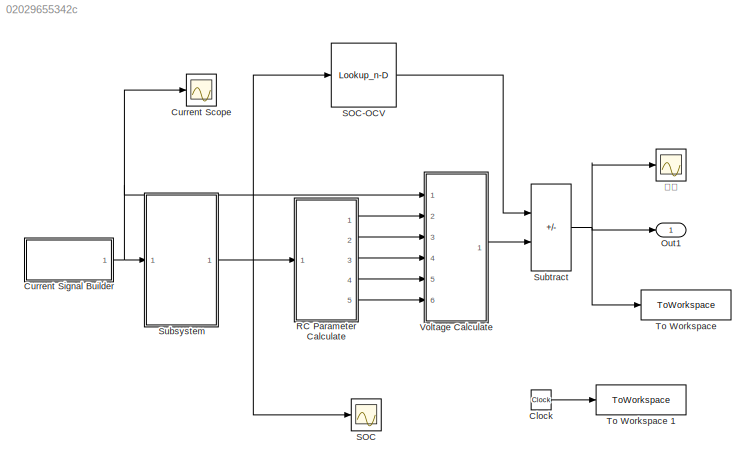
MODEL slx_02029655342c
KIND model
CONFIG AbsTol = auto
CONFIG FixedStep = auto
CONFIG MaxStep = auto
CONFIG MinStep = auto
CONFIG RelTol = 1e-3
CONFIG SampleTimeConstraint = Unconstrained
CONFIG Solver = VariableStepAuto
CONFIG SolverMode = SingleTasking
CONFIG SolverName = VariableStepAuto
CONFIG StartTime = 0.0
CONFIG StopTime = 50
BLOCK [Clock] Clock 
  Decimation = 50
BLOCK [Scope] Current Scope
  Floating = off
  NumInputPorts = 1
  Ports = [1]
  ScopeSpecificationString = Simulink.scopes.TimeScopeBlockCfg('CurrentConfiguration', extmgr.ConfigurationSet(extmgr.Configuration('Core','General UI',true,'DisplayFullSourceName',true),extmgr.Configuration('Core','Source UI',true),extmgr.Configuration('Sources','WiredSimulink',true),extmgr.Configuration('Visuals','Time Domain',true,'SerializedDisplays',{struct('MinYLimReal','-0.16875','MaxYLimReal','1.51875','YLabelReal',''...<+1450ch>
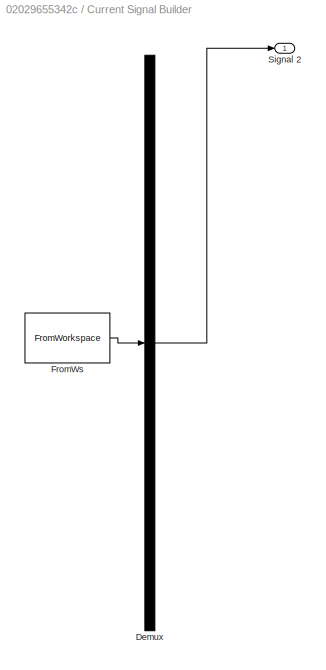
BLOCK [SubSystem] Current Signal Builder
  ClipboardFcn = sigbuilder_block('clipboard');
  CloseFcn = sigbuilder_block('close');
  ContinueFcn = sigbuilder_block('continue');
  CopyFcn = sigbuilder_block('copy');
  DeleteFcn = sigbuilder_block('delete');
  LoadFcn = sigbuilder_block('load');
  MaskHideContents = on
  ModelCloseFcn = sigbuilder_block('modelClose');
  NameChangeFcn = sigbuilder_block('namechange');
  OpenFcn = sigbuilder_block('open',[5.5 36 949 413 ]);
  PauseFcn = sigbuilder_block('pause');
  Ports = [0, 1]
  PreSaveFcn = sigbuilder_block('preSave');
  StartFcn = sigbuilder_block('start');
  StopFcn = sigbuilder_block('stop');
  Tag = STV Subsys
BLOCK [Demux] Current Signal Builder/Demux
  DisplayOption = none
  Outputs = 1
  Ports = [1, 1]
  Tag = STV Demux
BLOCK [FromWorkspace] Current Signal Builder/FromWs
  Tag = STV FromWs
  VariableName = tuvar
BLOCK [Outport] Current Signal Builder/Signal 2
  Tag = STV Outport
BLOCK [Outport] Out1
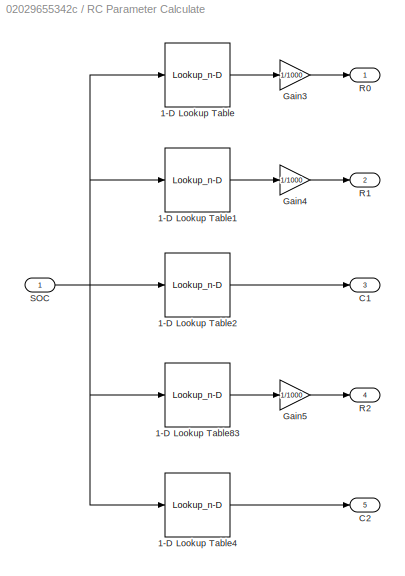
BLOCK [SubSystem] RC Parameter Calculate
  Ports = [1, 5]
BLOCK [Lookup_n-D] RC Parameter Calculate/1-D Lookup Table 
  BreakpointsForDimension1 = [0.1 0.2 0.3 0.4 0.5 0.6 0.7 0.8 0.9]
  InternalRulePriority = Speed
  NumberOfTableDimensions = 1
  Ports = [1, 1]
  RndMeth = Simplest
  Table = [92.037 92.5925 90 84.074 80.37 79.2595 78.5185 75.5555 74.074]
BLOCK [Lookup_n-D] RC Parameter Calculate/1-D Lookup Table1 
  BreakpointsForDimension1 = [0.1 0.2 0.3 0.4 0.5 0.6 0.7 0.8 0.9]
  InternalRulePriority = Speed
  NumberOfTableDimensions = 1
  Ports = [1, 1]
  RndMeth = Simplest
  Table = [32.444 10.800 8.407 6.647 7.496 7.919 7.859 4.832 7.096]
BLOCK [Lookup_n-D] RC Parameter Calculate/1-D Lookup Table2 
  BreakpointsForDimension1 = [0.1 0.2 0.3 0.4 0.5 0.6 0.7 0.8 0.9]
  InternalRulePriority = Speed
  NumberOfTableDimensions = 1
  Ports = [1, 1]
  RndMeth = Simplest
  Table = [54.960 121.674 146.389 425.919 229.409 195.097 443.340 277.612 167.920]
BLOCK [Lookup_n-D] RC Parameter Calculate/1-D Lookup Table4 
  BreakpointsForDimension1 = [0.1 0.2 0.3 0.4 0.5 0.6 0.7 0.8 0.9]
  InternalRulePriority = Speed
  NumberOfTableDimensions = 1
  Ports = [1, 1]
  RndMeth = Simplest
  Table = [498.253 1532.990 2513.583 1619.937 1471.419 1530.717 2878.646 1217.499 1672.882]
BLOCK [Lookup_n-D] RC Parameter Calculate/1-D Lookup Table83 
  BreakpointsForDimension1 = [0.1 0.2 0.3 0.4 0.5 0.6 0.7 0.8 0.9]
  InternalRulePriority = Speed
  NumberOfTableDimensions = 1
  Ports = [1, 1]
  RndMeth = Simplest
  Table = [29.370 18.481 15.511 12.504 13.156 11.585 12.852 13.430 10.837]
BLOCK [Outport] RC Parameter Calculate/C1
  Port = 3
BLOCK [Outport] RC Parameter Calculate/C2
  Port = 5
BLOCK [Gain] RC Parameter Calculate/Gain3
  Gain = 1/1000
BLOCK [Gain] RC Parameter Calculate/Gain4
  Gain = 1/1000
BLOCK [Gain] RC Parameter Calculate/Gain5
  Gain = 1/1000
BLOCK [Outport] RC Parameter Calculate/R0
BLOCK [Outport] RC Parameter Calculate/R1
  Port = 2
BLOCK [Outport] RC Parameter Calculate/R2
  Port = 4
BLOCK [Inport] RC Parameter Calculate/SOC
BLOCK [Scope] SOC
  Floating = off
  NumInputPorts = 1
  Ports = [1]
  ScopeSpecificationString = Simulink.scopes.TimeScopeBlockCfg('CurrentConfiguration', extmgr.ConfigurationSet(extmgr.Configuration('Core','General UI',true),extmgr.Configuration('Core','Source UI',true),extmgr.Configuration('Sources','WiredSimulink',true,'DataLoggingVariableName','ScopeData1'),extmgr.Configuration('Visuals','Time Domain',true,'SerializedDisplays',{struct('MinYLimReal','0.89683','MaxYLimReal','0.90035','YLabe...<+1366ch>
BLOCK [Lookup_n-D] SOC-OCV
  BreakpointsForDimension1 = [0.0 0.1 0.2 0.3 0.4 0.5 0.6 0.7 0.8 0.9 1]
  InternalRulePriority = Speed
  NumberOfTableDimensions = 1
  Ports = [1, 1]
  RndMeth = Simplest
  Table = [2.237 3.230 3.277 3.311 3.314 3.316 3.322 3.349 3.350 3.351 3.368]
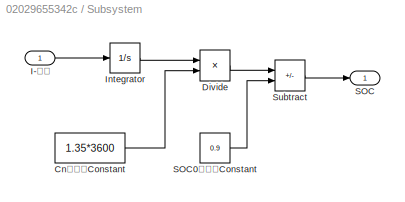
BLOCK [SubSystem] Subsystem
  Ports = [1, 1]
BLOCK [Constant] Subsystem/Cn模块名Constant
  Value = 1.35*3600
BLOCK [Product] Subsystem/Divide 
  Inputs = */
  Ports = [2, 1]
BLOCK [Inport] Subsystem/I-电流
BLOCK [Integrator] Subsystem/Integrator 
  Ports = [1, 1]
BLOCK [Outport] Subsystem/SOC
BLOCK [Constant] Subsystem/SOC0模块名Constant
  Value = 0.9
BLOCK [Sum] Subsystem/Subtract 
  IconShape = rectangular
  Inputs = -+
  Ports = [2, 1]
BLOCK [Sum] Subtract 
  IconShape = rectangular
  Inputs = +-
  Ports = [2, 1]
BLOCK [ToWorkspace] To Workspace 
  FixptAsFi = on
  MaxDataPoints = inf
  Ports = [1]
  SampleTime = -1
  SaveFormat = Timeseries
  VariableName = Usim
BLOCK [ToWorkspace] To Workspace 1
  FixptAsFi = on
  MaxDataPoints = inf
  Ports = [1]
  SampleTime = -1
  SaveFormat = Timeseries
  VariableName = Tsim
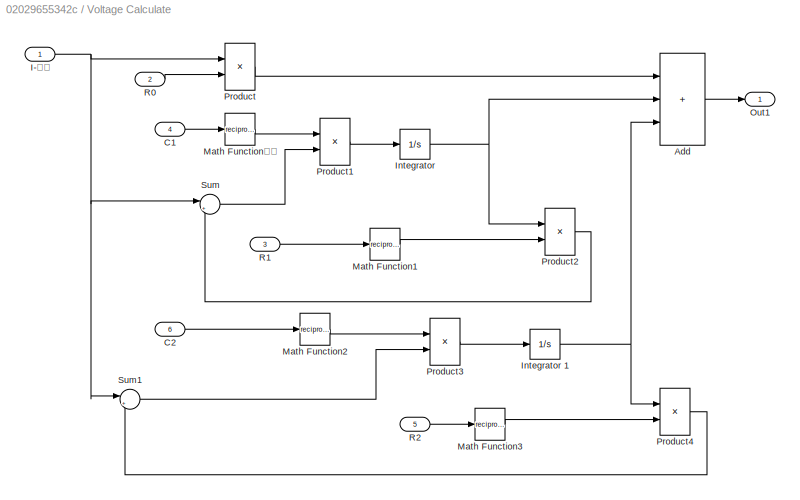
BLOCK [SubSystem] Voltage Calculate
  Ports = [6, 1]
BLOCK [Sum] Voltage Calculate/Add 
  IconShape = rectangular
  Inputs = +++
  Ports = [3, 1]
BLOCK [Inport] Voltage Calculate/C1
  Port = 4
BLOCK [Inport] Voltage Calculate/C2
  Port = 6
BLOCK [Inport] Voltage Calculate/I-电流
BLOCK [Integrator] Voltage Calculate/Integrator 
  Ports = [1, 1]
BLOCK [Integrator] Voltage Calculate/Integrator 1
  Ports = [1, 1]
BLOCK [Math] Voltage Calculate/Math Function1 
  Operator = reciprocal
  Ports = [1, 1]
BLOCK [Math] Voltage Calculate/Math Function2 
  Operator = reciprocal
  Ports = [1, 1]
BLOCK [Math] Voltage Calculate/Math Function3 
  Operator = reciprocal
  Ports = [1, 1]
BLOCK [Math] Voltage Calculate/Math Function倒数
  Operator = reciprocal
  Ports = [1, 1]
BLOCK [Outport] Voltage Calculate/Out1 
BLOCK [Product] Voltage Calculate/Product 
  Ports = [2, 1]
BLOCK [Product] Voltage Calculate/Product1 
  Ports = [2, 1]
BLOCK [Product] Voltage Calculate/Product2 
  Ports = [2, 1]
BLOCK [Product] Voltage Calculate/Product3 
  Ports = [2, 1]
BLOCK [Product] Voltage Calculate/Product4 
  Ports = [2, 1]
BLOCK [Inport] Voltage Calculate/R0
  Port = 2
BLOCK [Inport] Voltage Calculate/R1
  Port = 3
BLOCK [Inport] Voltage Calculate/R2
  Port = 5
BLOCK [Sum] Voltage Calculate/Sum
  Inputs = |+-
  Ports = [2, 1]
BLOCK [Sum] Voltage Calculate/Sum1
  Inputs = |+-
  Ports = [2, 1]
BLOCK [Scope] 仿真
  Floating = off
  NumInputPorts = 1
  Ports = [1]
  ScopeSpecificationString = Simulink.scopes.TimeScopeBlockCfg('CurrentConfiguration', extmgr.ConfigurationSet(extmgr.Configuration('Core','General UI',true),extmgr.Configuration('Core','Source UI',true),extmgr.Configuration('Sources','WiredSimulink',true,'DataLoggingVariableName','ScopeData2'),extmgr.Configuration('Visuals','Time Domain',true,'SerializedDisplays',{struct('MinYLimReal','3.22077','MaxYLimReal','3.36466','YLabe...<+1434ch>
LINE Clock :1 -> To Workspace 1:1
NET Current Signal Builder:1 -> Current Scope:1, Subsystem:1, Voltage Calculate:1
LINE RC Parameter Calculate/1-D Lookup Table :1 -> RC Parameter Calculate/Gain3:1
LINE RC Parameter Calculate/1-D Lookup Table1 :1 -> RC Parameter Calculate/Gain4:1
LINE RC Parameter Calculate/1-D Lookup Table2 :1 -> RC Parameter Calculate/C1:1
LINE RC Parameter Calculate/1-D Lookup Table4 :1 -> RC Parameter Calculate/C2:1
LINE RC Parameter Calculate/1-D Lookup Table83 :1 -> RC Parameter Calculate/Gain5:1
LINE RC Parameter Calculate/Gain3:1 -> RC Parameter Calculate/R0:1
LINE RC Parameter Calculate/Gain4:1 -> RC Parameter Calculate/R1:1
LINE RC Parameter Calculate/Gain5:1 -> RC Parameter Calculate/R2:1
NET RC Parameter Calculate/SOC:1 -> RC Parameter Calculate/1-D Lookup Table :1, RC Parameter Calculate/1-D Lookup Table1 :1, RC Parameter Calculate/1-D Lookup Table2 :1, RC Parameter Calculate/1-D Lookup Table4 :1, RC Parameter Calculate/1-D Lookup Table83 :1
LINE RC Parameter Calculate:1 -> Voltage Calculate:2
LINE RC Parameter Calculate:2 -> Voltage Calculate:3
LINE RC Parameter Calculate:3 -> Voltage Calculate:4
LINE RC Parameter Calculate:4 -> Voltage Calculate:5
LINE RC Parameter Calculate:5 -> Voltage Calculate:6
LINE SOC-OCV:1 -> Subtract :1
LINE Subsystem/Cn模块名Constant:1 -> Subsystem/Divide :2
LINE Subsystem/Divide :1 -> Subsystem/Subtract :1
LINE Subsystem/I-电流:1 -> Subsystem/Integrator :1
LINE Subsystem/Integrator :1 -> Subsystem/Divide :1
LINE Subsystem/SOC0模块名Constant:1 -> Subsystem/Subtract :2
LINE Subsystem/Subtract :1 -> Subsystem/SOC:1
NET Subsystem:1 -> RC Parameter Calculate:1, SOC-OCV:1, SOC:1
NET Subtract :1 -> Out1:1, To Workspace :1, 仿真:1
LINE Voltage Calculate/Add :1 -> Voltage Calculate/Out1 :1
LINE Voltage Calculate/C1:1 -> Voltage Calculate/Math Function倒数:1
LINE Voltage Calculate/C2:1 -> Voltage Calculate/Math Function2 :1
NET Voltage Calculate/I-电流:1 -> Voltage Calculate/Product :1, Voltage Calculate/Sum1:1, Voltage Calculate/Sum:1
NET Voltage Calculate/Integrator 1:1 -> Voltage Calculate/Add :3, Voltage Calculate/Product4 :1
NET Voltage Calculate/Integrator :1 -> Voltage Calculate/Add :2, Voltage Calculate/Product2 :1
LINE Voltage Calculate/Math Function1 :1 -> Voltage Calculate/Product2 :2
LINE Voltage Calculate/Math Function2 :1 -> Voltage Calculate/Product3 :1
LINE Voltage Calculate/Math Function3 :1 -> Voltage Calculate/Product4 :2
LINE Voltage Calculate/Math Function倒数:1 -> Voltage Calculate/Product1 :1
LINE Voltage Calculate/Product :1 -> Voltage Calculate/Add :1
LINE Voltage Calculate/Product1 :1 -> Voltage Calculate/Integrator :1
LINE Voltage Calculate/Product2 :1 -> Voltage Calculate/Sum:2
LINE Voltage Calculate/Product3 :1 -> Voltage Calculate/Integrator 1:1
LINE Voltage Calculate/Product4 :1 -> Voltage Calculate/Sum1:2
LINE Voltage Calculate/R0:1 -> Voltage Calculate/Product :2
LINE Voltage Calculate/R1:1 -> Voltage Calculate/Math Function1 :1
LINE Voltage Calculate/R2:1 -> Voltage Calculate/Math Function3 :1
LINE Voltage Calculate/Sum1:1 -> Voltage Calculate/Product3 :2
LINE Voltage Calculate/Sum:1 -> Voltage Calculate/Product1 :2
LINE Voltage Calculate:1 -> Subtract :2
note: NET lines group one-source signal fan-out (src -> all destinations, sorted); 1:1 wires keep LINE
